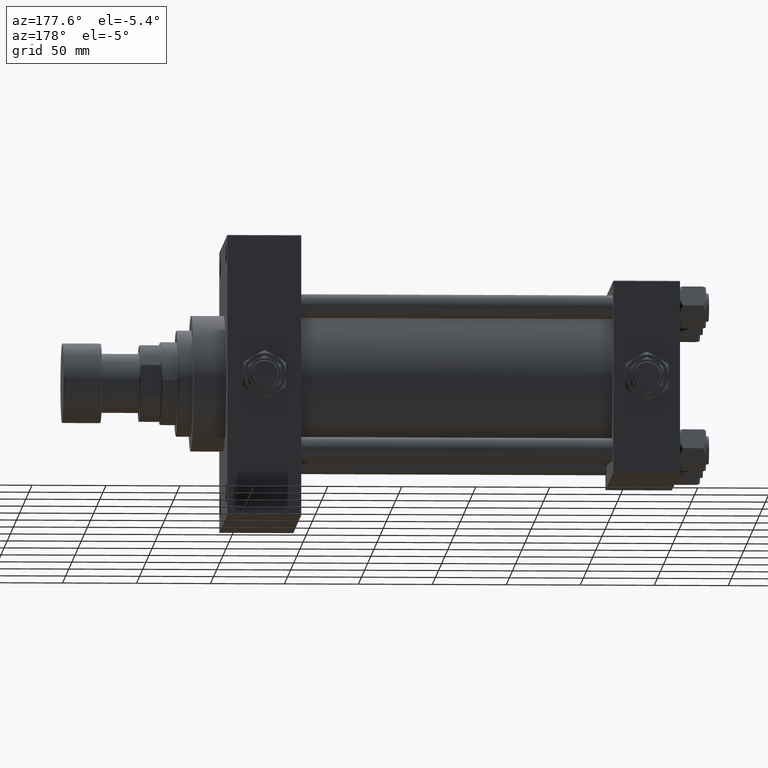
[diagram: clean part render]
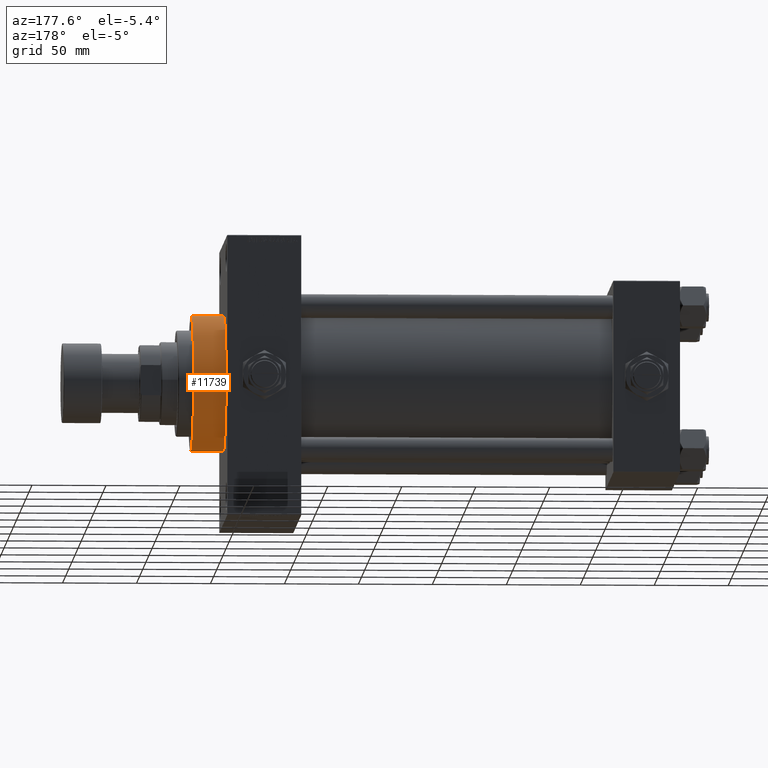
[diagram: same view with one face highlighted and labeled with its STEP entity id]
A machine part, auxiliary view. The second image highlights one B-rep face of the part: STEP entity #11739.
In plain terms, the highlighted cylindrical surface (partial cylindrical patch) has radius 46 mm, axis along (-1, -0, -0).
Its self-contained STEP definition (entity closure, byte-faithful):
#2262 = ORIENTED_EDGE ( 'NONE', *, *, #22560, .F. ) ;
#2281 = CIRCLE ( 'NONE', #29940, 46.00000000000000000 ) ;
#6231 = CARTESIAN_POINT ( 'NONE',  ( 306.0000000000000000, 0.000000000000000000, 46.00000000000000000 ) ) ;
#7121 = ORIENTED_EDGE ( 'NONE', *, *, #42569, .T. ) ;
#8035 = CARTESIAN_POINT ( 'NONE',  ( 328.0000000000000000, 5.633375276077824704E-15, -46.00000000000000000 ) ) ;
#8795 = DIRECTION ( 'NONE',  ( 1.000000000000000000, 0.000000000000000000, 0.000000000000000000 ) ) ;
#9959 = VECTOR ( 'NONE', #46003, 1000.000000000000000 ) ;
#10139 = VERTEX_POINT ( 'NONE', #6231 ) ;
#11739 = ADVANCED_FACE ( 'NONE', ( #39048 ), #31908, .T. ) ;
#11803 = AXIS2_PLACEMENT_3D ( 'NONE', #49402, #22908, #46833 ) ;
#13438 = CIRCLE ( 'NONE', #11803, 46.00000000000000000 ) ;
#13466 = CARTESIAN_POINT ( 'NONE',  ( 306.0000000000000000, 5.633375276077824704E-15, -46.00000000000000000 ) ) ;
#14974 = LINE ( 'NONE', #30479, #9959 ) ;
#16096 = EDGE_LOOP ( 'NONE', ( #21811, #7121, #29000, #2262 ) ) ;
#16948 = CARTESIAN_POINT ( 'NONE',  ( 306.0000000000000000, 0.000000000000000000, 0.000000000000000000 ) ) ;
#19239 = EDGE_CURVE ( 'NONE', #33517, #50368, #13438, .T. ) ;
#19707 = DIRECTION ( 'NONE',  ( -1.000000000000000000, -0.000000000000000000, -0.000000000000000000 ) ) ;
#21429 = VERTEX_POINT ( 'NONE', #13466 ) ;
#21736 = DIRECTION ( 'NONE',  ( -1.000000000000000000, -0.000000000000000000, -0.000000000000000000 ) ) ;
#21811 = ORIENTED_EDGE ( 'NONE', *, *, #19239, .F. ) ;
#22110 = AXIS2_PLACEMENT_3D ( 'NONE', #32164, #19707, #35241 ) ;
#22560 = EDGE_CURVE ( 'NONE', #50368, #10139, #36507, .T. ) ;
#22908 = DIRECTION ( 'NONE',  ( 1.000000000000000000, 0.000000000000000000, 0.000000000000000000 ) ) ;
#24814 = DIRECTION ( 'NONE',  ( 0.000000000000000000, 0.000000000000000000, -1.000000000000000000 ) ) ;
#28980 = VECTOR ( 'NONE', #21736, 1000.000000000000000 ) ;
#29000 = ORIENTED_EDGE ( 'NONE', *, *, #33599, .T. ) ;
#29940 = AXIS2_PLACEMENT_3D ( 'NONE', #16948, #8795, #24814 ) ;
#30479 = CARTESIAN_POINT ( 'NONE',  ( 328.0000000000000000, 5.633375276077824704E-15, -46.00000000000000000 ) ) ;
#31908 = CYLINDRICAL_SURFACE ( 'NONE', #22110, 46.00000000000000000 ) ;
#32164 = CARTESIAN_POINT ( 'NONE',  ( 328.0000000000000000, 0.000000000000000000, 0.000000000000000000 ) ) ;
#33517 = VERTEX_POINT ( 'NONE', #8035 ) ;
#33599 = EDGE_CURVE ( 'NONE', #21429, #10139, #2281, .T. ) ;
#35241 = DIRECTION ( 'NONE',  ( 0.000000000000000000, 0.000000000000000000, 1.000000000000000000 ) ) ;
#36507 = LINE ( 'NONE', #43893, #28980 ) ;
#38093 = CARTESIAN_POINT ( 'NONE',  ( 328.0000000000000000, 0.000000000000000000, 46.00000000000000000 ) ) ;
#39048 = FACE_OUTER_BOUND ( 'NONE', #16096, .T. ) ;
#42569 = EDGE_CURVE ( 'NONE', #33517, #21429, #14974, .T. ) ;
#43893 = CARTESIAN_POINT ( 'NONE',  ( 328.0000000000000000, 0.000000000000000000, 46.00000000000000000 ) ) ;
#46003 = DIRECTION ( 'NONE',  ( -1.000000000000000000, -0.000000000000000000, -0.000000000000000000 ) ) ;
#46833 = DIRECTION ( 'NONE',  ( 0.000000000000000000, 0.000000000000000000, -1.000000000000000000 ) ) ;
#49402 = CARTESIAN_POINT ( 'NONE',  ( 328.0000000000000000, 0.000000000000000000, 0.000000000000000000 ) ) ;
#50368 = VERTEX_POINT ( 'NONE', #38093 ) ;